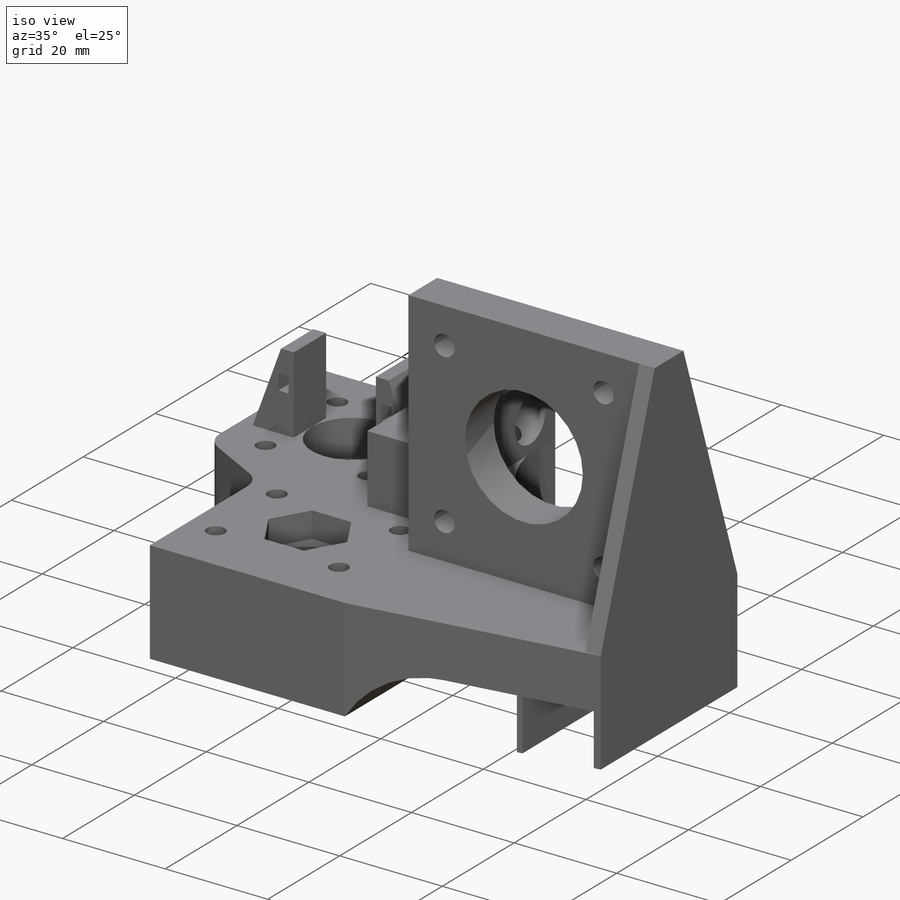
[diagram: iso view]
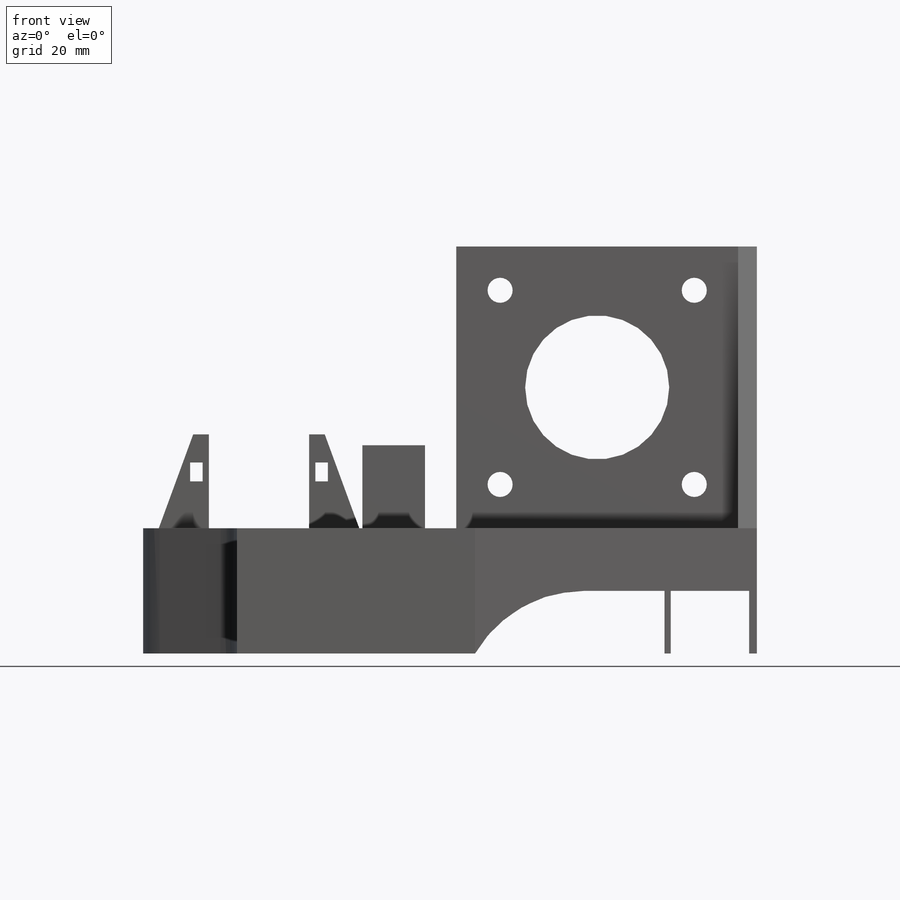
[diagram: front view]
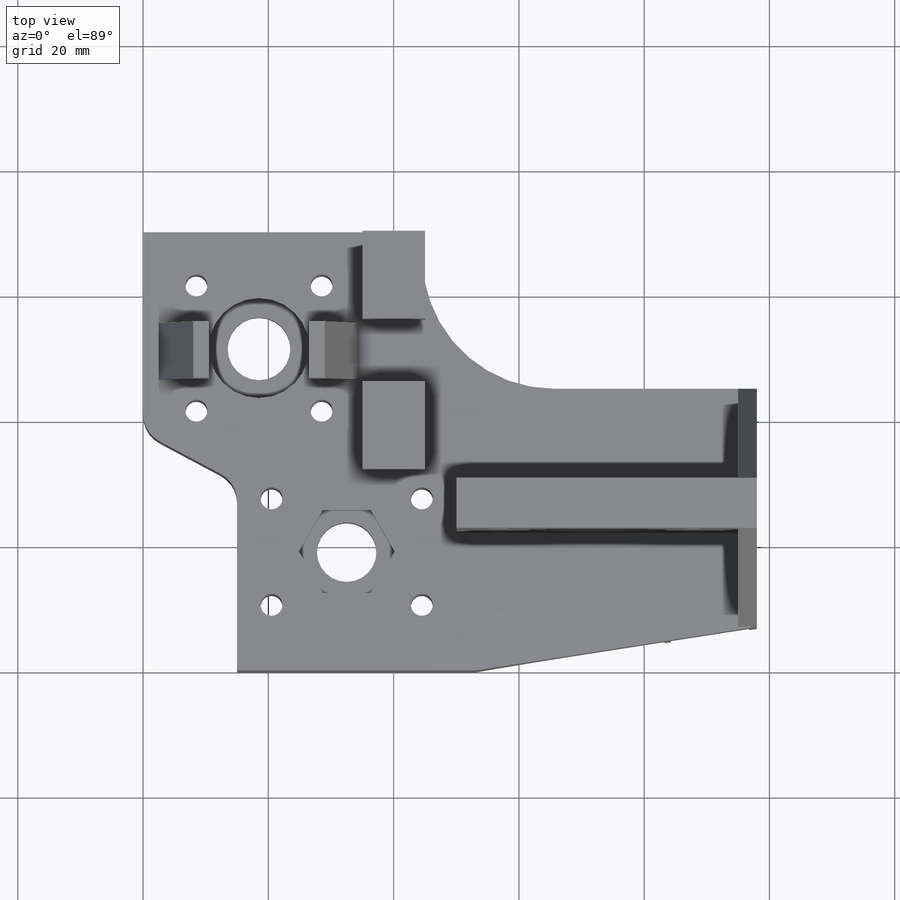
[diagram: top view]
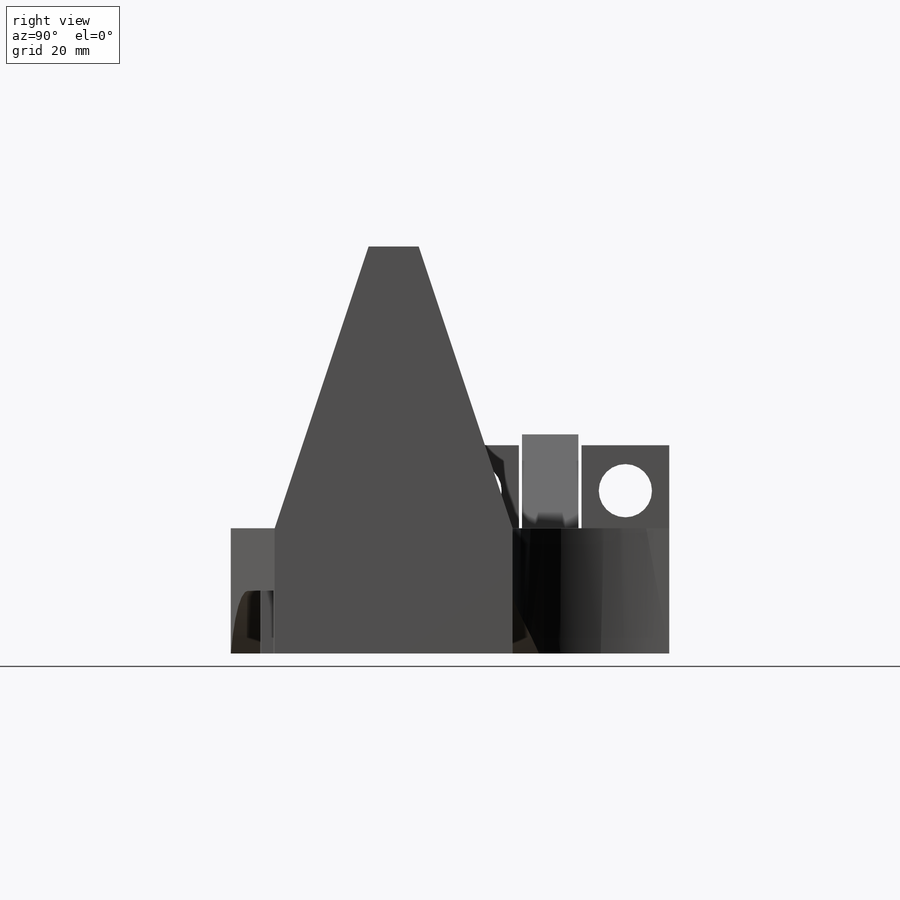
[diagram: right view]
SOLIDWORKS PART (.sldprt)
format: sldprt  version: not decoded by parser v0  size: 789,504 bytes
history: native  units: mm
features: sketch x23, cut_extrude x14, extrude x7, fillet x2, material x1, hole x1 (+11 scaffold rows collapsed)
feature tree (59):
  scaffold x11  (default folders/planes/origin — collapsed)
  material  "ABS PC"
  sketch  "Sketch1"  dims[D1=70.0mm D2=98.0mm]
  extrude  "Boss-Extrude1"  Depth=10mm
  sketch  "Sketch22"  dims[D1=53.0mm D2=38.0mm D3=70.0mm D4=30.0mm D5=32.0mm]
  extrude  "Boss-Extrude5"  Depth=10mm
  sketch  "Sketch2"  dims[c1.D1=10.0mm c1.D2=9.5mm c1.D3=9.0mm c1.D4=17.0mm c1.D5=17.0mm c2.D3=14.0mm c2.D4=32.5mm c2.D5=18.5mm c2.D6=18.5mm]
  cut_extrude  "Cut-Extrude1"  [1 undecoded]
  sketch  "Sketch3"  dims[D2=16.0mm D1=15.3mm]
  cut_extrude  "Cut-Extrude2"  Depth=5mm
  sketch  "Sketch5"  dims[c1.D1=3.5mm c1.D2=3.5mm c1.D3=3.5mm c1.D4=16.0mm c1.D5=3.5mm c1.D7=3.5mm c1.D9=3.5mm c2.D2=3.5mm c2.D3=3.5mm c3.D2=~28.284271mm c3.D3=3.5mm c3.D4=3.5mm c3.D5=3.5mm c3.D10=3.5mm c4.D2=3.5mm c4.D10=10.0mm c4.D11=3.5mm c5.D2=10.0mm c5.D3=10.0mm c5.D4=10.0mm c5.D5=10.0mm c5.D6=12.0mm c5.D7=12.0mm c5.D8=8.5mm c5.D9=8.5mm c6.D2=10.0mm c6.D3=10.0mm c6.D4=10.0mm c7.D3=20.0mm c7.D4=20.0mm c7.D5=20.0mm c7.D10=20.0mm c7.D2=10.0mm c8.D10=10.0mm]
  cut_extrude  "Cut-Extrude3"  [1 undecoded]
  sketch  "Sketch7"  dims[D1=15.0mm D2=38.0mm D3=30.0mm]
  cut_extrude  "Cut-Extrude5"  [1 undecoded]
  sketch  "Sketch26"  dims[D1=16.0mm]
  cut_extrude  "Cut-Extrude14"  Depth=7mm
  sketch  "Sketch8"  dims[D1=14.0mm D2=10.0mm D3=35.0mm D4=14.0mm D5=10.0mm D6=26.5mm D7=8.0mm D8=8.0mm D9=14.0mm D10=10.5mm]
  extrude  "Boss-Extrude2"  Depth=13.25mm
  sketch  "Sketch9"  dims[c1.D5=8.5mm c1.D6=8.5mm c1.D7=8.5mm c1.D1=8.5mm c1.D3=8.5mm c2.D1=7.4mm c2.D2=4.0mm c2.D3=3.7mm c2.D4=6.0mm c2.D6=7.0mm c2.D7=6.0mm c3.D2=7.0mm c3.D3=7.0mm]
  cut_extrude  "Cut-Extrude6"  [1 undecoded]
  sketch  "Sketch13"  dims[D1=8.4mm D2=5.2mm D3=3.0mm D4=35.8mm]
  cut_extrude  "Cut-Extrude10"  Depth=38mm
  sketch  "Sketch16"  dims[D1=8.0mm D2=40.0mm D3=5.0mm D4=45.0mm]
  extrude  "Boss-Extrude3"  Depth=45mm
  sketch  "Sketch17"  dims[c1.D1=23.0mm c1.D3=7.0mm c1.D4=~6.574258mm c1.D5=~6.574258mm c1.D6=~6.574258mm c1.D7=7.0mm c1.D8=~6.574258mm c1.D9=7.0mm c1.D10=7.0mm c1.D11=7.0mm c2.D6=4.0mm c2.D7=7.0mm c2.D8=7.0mm c2.D2=50.0mm c2.D3=23.0mm c2.D4=15.5mm c2.D5=15.5mm c3.D6=15.5mm c3.D7=15.5mm c3.D8=15.5mm c3.D9=15.5mm c3.D10=15.5mm c3.D11=15.5mm c4.D7=15.5mm c4.D8=15.5mm c4.D2=21.5mm c4.D3=34.5mm c4.D9=21.5mm c5.D3=33.1mm c5.D2=22.5mm c6.D3=22.5mm]
  cut_extrude  "Cut-Extrude11"  [1 undecoded]
  sketch  "Sketch18"  dims[D1=15.0mm D2=15.0mm]
  extrude  "Boss-Extrude4"  Depth=3mm
  sketch  "Sketch20"  dims[D1=45.0mm]
  cut_extrude  "Cut-Extrude12"  [1 undecoded]
  sketch  "Sketch21"  dims[D1=21.0mm]
  cut_extrude  "Cut-Extrude13"  [1 undecoded]
  fillet  "Fillet5"  Radius=5mm
  hole  "Ø5.5 (5.5) Diameter Hole3"  Diameter=5.5mm Depth=23mm
  sketch  "Sketch24"  dims[D1=40.0mm D2=7.0mm D3=24.0mm]
  sketch  "Sketch23"  dims[hole-wizard template sketch: 46 standard entries collapsed; hole parameters kept: c15.Hole Dia.=5.5mm c15.Hole Depth=23.0mm c15.D3=~14.816244mm c15.Drill Angle=118.0deg]
  fillet  "Fillet8"  Radius=20mm
  sketch  "Sketch27"  dims[D1=16.0mm]
  cut_extrude  "Cut-Extrude15"  Depth=7mm
  sketch  "Sketch29"  dims[D1=15.3mm]
  cut_extrude  "Cut-Extrude16"  Depth=5mm
  sketch  "Sketch30"  dims[D1=10.5mm D2=26.5mm D3=8.0mm D4=9.0mm D5=14.5mm]
  extrude  "Boss-Extrude6"  Depth=15mm
  sketch  "Sketch31"  dims[c1.D1=2.5mm c1.D2=4.0mm c2.D1=5.5mm]
  cut_extrude  "Cut-Extrude17"  Depth=9mm
  sketch  "Sketch32"  dims[D1=2.0mm D2=3.0mm D3=1.0mm D4=4.5mm D5=1.0mm]
  cut_extrude  "Cut-Extrude18"  Depth=9mm
  sketch  "Sketch25"  dims[c1.D1=~38.648018mm c2.D1=~178.035725deg c3.D1=1.25mm c3.D2=1.0mm c3.D3=12.5mm]
  extrude  "bridge build help"  Depth=10mm
decode coverage: 40 of 47 modeling features carry decoded parameters
note: ~ marks probable driven/reference dimensions
note: 7 parameter values undecoded
summary: no parameter record found for 7 features
note: suppression state not decoded; provenance and decode notes live in map.json
